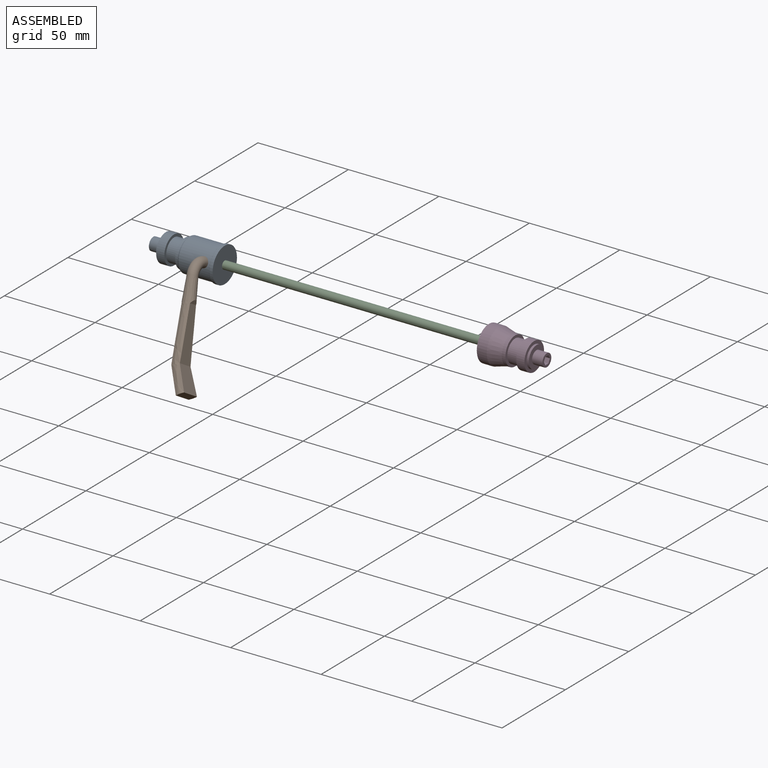
[diagram: assembled view]
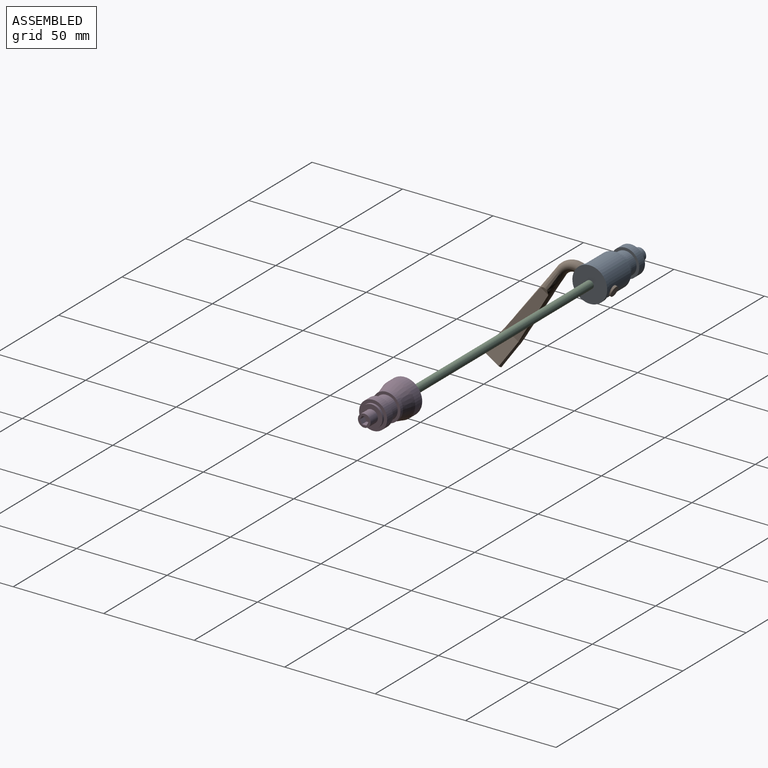
[diagram: assembled view, second angle]
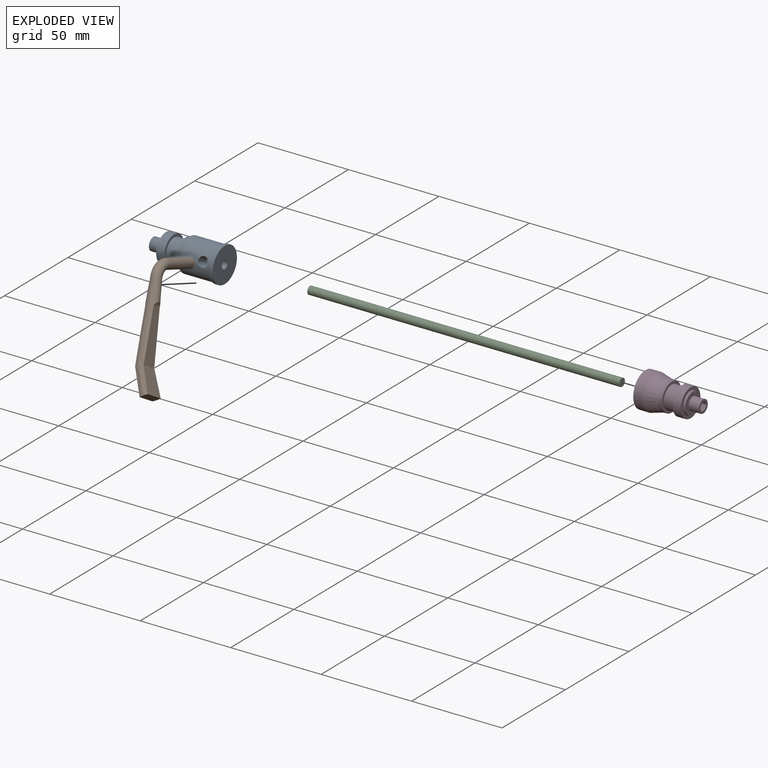
[diagram: exploded view]
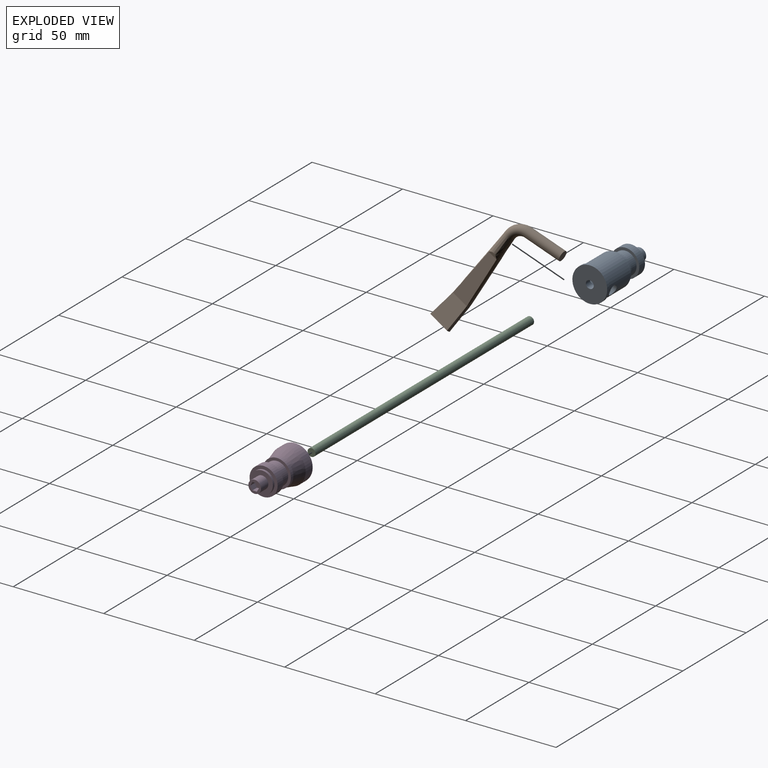
[diagram: exploded view, second angle]
ASSEMBLY  parts=4 mates=3
PART A: 28 faces, bbox 39.5x20.8x20.8 mm
  f0: cylinder r=2.75mm len=17.83mm, axis (0,-1,0), area 274.5mm2, adj f1,f19,f24
  f1: cylinder r=2.19mm len=8.33mm, axis (1,0,0), area 107.1mm2, adj f0,f25
  f2: plane 3.5x2.43mm, normal (0,0,1), area 8.5mm2, adj f3,f7,f8,f26
  f3: plane 3.5x2.1mm, normal (0,0.87,0.5), area 8.5mm2, adj f2,f4,f8,f26
  f4: plane 3.5x2.1mm, normal (0,0.87,-0.5), area 8.5mm2, adj f3,f5,f8,f26
  f5: plane 3.5x2.43mm, normal (0,0,-1), area 8.5mm2, adj f4,f6,f8,f26
  f6: plane 3.5x2.1mm, normal (0,-0.87,-0.5), area 8.5mm2, adj f5,f7,f8,f26
  f7: plane 3.5x2.1mm, normal (0,-0.87,0.5), area 8.5mm2, adj f2,f6,f8,f26
  f8: plane 4.85x4.2mm, normal (-1,0,0), area 15.3mm2, adj f2,f3,f4,f5,f6,f7
  f9: plane 12x12mm, normal (-1,0,0), area 74.6mm2, adj f10,f27
  f10: cylinder r=6mm len=12mm, axis (1,0,0), area 47.1mm2, adj f9,f11
  f11: plane 15.5x15.5mm, normal (-1,0,0), area 75.6mm2, adj f10,f12
  f12: cylinder r=7.75mm len=15.5mm, axis (1,0,0), area 219.1mm2, adj f11,f13
  f13: plane 15.5x15.5mm, normal (1,0,0), area 66mm2, adj f12,f14
  f14: cylinder r=6.25mm len=12.5mm, axis (1,0,0), area 235.6mm2, adj f13,f15
  f15: plane 15.5x15.5mm, normal (-1,0,0), area 66mm2, adj f14,f16
  f16: cylinder r=7.75mm len=15.5mm, axis (1,0,0), area 97.4mm2, adj f15,f17
  f17: plane 16.25x16.25mm, normal (-1,0,0), area 18.7mm2, adj f16,f18
  f18: torus R=8.12mm, axis (1,0,0), area 86.5mm2, adj f17,f19
  f19: cylinder r=9.12mm len=18.25mm, axis (1,0,0), area 926mm2, adj f0,f18,f20
  f20: plane 18.75x18.75mm, normal (-1,0,0), area 14.5mm2, adj f19,f21
  f21: torus R=9.38mm, axis (1,0,0), area 23.5mm2, adj f20,f22
  f22: cylinder r=9.62mm len=19.25mm, axis (1,0,0), area 105.8mm2, adj f21,f23
  f23: plane 19.25x19.25mm, normal (1,0,0), area 276mm2, adj f22,f24
  f24: cylinder r=2.19mm len=4.38mm, axis (1,0,0), area 52.1mm2, adj f0,f23
  f25: plane 4.38x4.38mm, normal (1,0,0), area 15mm2, adj f1
  f26: plane 7x7mm, normal (-1,0,0), area 23.2mm2, adj f2,f3,f4,f5,f6,f7,f27
  f27: cylinder r=3.5mm len=7mm, axis (1,0,0), area 126.4mm2, adj f9,f26
PART B: 11 faces, bbox 30.9x47.5x66.6 mm
  f0: cylinder r=2.75mm len=20mm, axis (0,-1,0), area 345.6mm2, adj f1,f2
  f1: plane 5.5x5.5mm, normal (0,1,0), area 23.8mm2, adj f0
  f2: torus R=8mm, axis (0.97,0,0.26), area 189.4mm2, adj f0,f3
  f3: bspline ~54.95x26.32mm, area 640mm2, adj f2,f4,f5,f6,f7,f8,f9,f10
  f4: plane 5.09x2.64mm, normal (0.96,-0.1,-0.25), area 7.7mm2, adj f3,f6
  f5: plane 13.43x12.66mm, normal (0.82,0.07,0.57), area 145.4mm2, adj f3,f6,f7
  f6: plane 30.68x15.45mm, normal (0.97,0,0.26), area 200.3mm2, adj f3,f4,f5
  f7: plane 11.87x4.7mm, normal (0.57,-0.19,-0.8), area 52.7mm2, adj f3,f5,f9
  f8: plane 28.67x12.78mm, normal (-0.97,0,-0.26), area 206.8mm2, adj f3,f9,f10
  f9: plane 14.04x12.72mm, normal (-0.82,-0.07,-0.57), area 153mm2, adj f3,f7,f8
  f10: plane 6.35x3.31mm, normal (-0.71,-0.1,-0.7), area 12.6mm2, adj f3,f8
PART C: 3 faces, bbox 172.5x4.4x4.4 mm
  f0: cylinder r=2.19mm len=172.5mm, axis (1,0,0), area 2370.9mm2, adj f1,f2
  f1: plane 4.38x4.38mm, normal (1,0,0), area 15mm2, adj f0
  f2: plane 4.38x4.38mm, normal (-1,0,0), area 15mm2, adj f0
PART D: 22 faces, bbox 32x19.3x19.3 mm
  f0: plane 3.5x2.1mm, normal (0,0.87,-0.5), area 8.5mm2, adj f1,f5,f6,f19
  f1: plane 3.5x2.1mm, normal (0,0.87,0.5), area 8.5mm2, adj f0,f2,f6,f19
  f2: plane 3.5x2.43mm, normal (0,0,1), area 8.5mm2, adj f1,f3,f6,f19
  f3: plane 3.5x2.1mm, normal (0,-0.87,0.5), area 8.5mm2, adj f2,f4,f6,f19
  f4: plane 3.5x2.1mm, normal (0,-0.87,-0.5), area 8.5mm2, adj f3,f5,f6,f19
  f5: plane 3.5x2.43mm, normal (0,0,-1), area 8.5mm2, adj f0,f4,f6,f19
  f6: plane 4.85x4.2mm, normal (1,0,0), area 15.3mm2, adj f0,f1,f2,f3,f4,f5
  f7: plane 19.25x19.25mm, normal (-1,0,0), area 276mm2, adj f8,f21
  f8: cylinder r=9.62mm len=19.25mm, axis (1,0,0), area 332.8mm2, adj f7,f9
  f9: cone r=8.69mm half-angle=15deg, axis (-1,0,0), area 395.4mm2, adj f8,f10
  f10: cylinder r=7.75mm len=15.5mm, axis (1,0,0), area 97.4mm2, adj f9,f11
  f11: plane 15.5x15.5mm, normal (1,0,0), area 66mm2, adj f10,f12
  f12: cylinder r=6.25mm len=12.5mm, axis (1,0,0), area 235.6mm2, adj f11,f13
  f13: plane 15.5x15.5mm, normal (-1,0,0), area 66mm2, adj f12,f14
  f14: cylinder r=7.75mm len=15.5mm, axis (1,0,0), area 219.1mm2, adj f13,f15
  f15: plane 15.5x15.5mm, normal (1,0,0), area 75.6mm2, adj f14,f16
  f16: cylinder r=6mm len=12mm, axis (1,0,0), area 47.1mm2, adj f15,f17
  f17: plane 12x12mm, normal (1,0,0), area 74.6mm2, adj f16,f18
  f18: cylinder r=3.5mm len=7mm, axis (1,0,0), area 126.4mm2, adj f17,f19
  f19: plane 7x7mm, normal (1,0,0), area 23.2mm2, adj f0,f1,f2,f3,f4,f5,f18
  f20: plane 4.38x4.38mm, normal (-1,0,0), area 15mm2, adj f21
  f21: cylinder r=2.19mm len=10.5mm, axis (1,0,0), area 144.3mm2, adj f7,f20
PLACE A rot(axis=(-1,0,0),19.4deg) t=(0,1242.47,136.72)mm
PLACE B rot(axis=(-0.99,0.16,-0.03),19.7deg) t=(-0.12,1241,132.56)mm
PLACE C t=(0,1242.47,136.72)mm fixed
PLACE D t=(0,1242.47,136.72)mm
MATE revolute B.f0 <-> A.f0  axis (0,-0.94,0.33) through (-79,1242.47,136.72)mm
MATE revolute A.f1 <-> C.f0  axis (1,0,0) through (-89,1242.47,136.72)mm
MATE fastened D.f8 <-> C.f0  axis (-1,0,0) through (83.5,1242.47,136.72)mm
